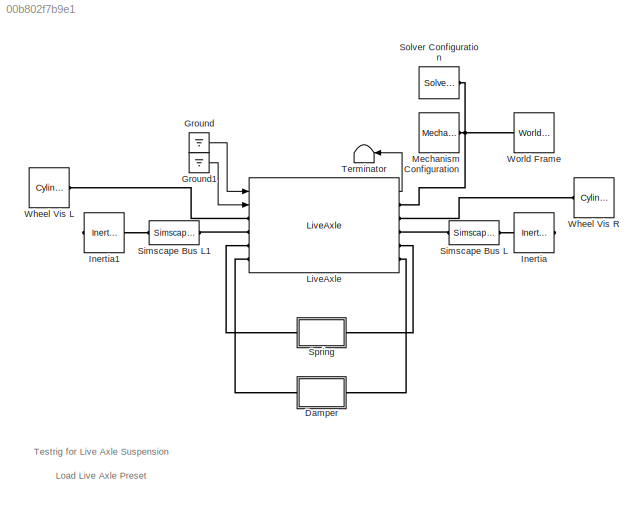
MODEL slx_00b802f7b9e1
KIND model
CONFIG AbsTol = auto
CONFIG EnableMultiTasking = on
CONFIG FixedStep = auto
CONFIG MaxStep = auto
CONFIG MinStep = auto
CONFIG RelTol = 1e-3
CONFIG SampleTimeConstraint = Unconstrained
CONFIG SolverName = ode23t
CONFIG StartTime = 0.0
CONFIG StopTime = 10.0
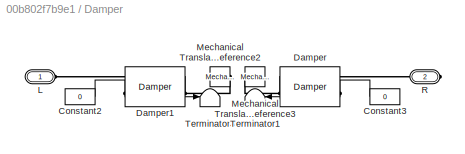
BLOCK [SubSystem] Damper
  Ports = [0, 0, 0, 0, 0, 1, 1]
  RequestExecContextInheritance = off
BLOCK [Constant] Damper/Constant2
  Value = 0
BLOCK [Constant] Damper/Constant3
  Value = 0
BLOCK [Reference] Damper/Damper  REF=Damper_Basics/Damper
  AttributesFormatString = %<ActiveVariant>
  Ports = [1, 1, 0, 0, 0, 1, 1]
  SourceBlock = Damper_Basics/Damper
  SourceType = Variants for Damper
BLOCK [Reference] Damper/Damper1  REF=Damper_Basics/Damper
  AttributesFormatString = %<ActiveVariant>
  Ports = [1, 1, 0, 0, 0, 1, 1]
  SourceBlock = Damper_Basics/Damper
  SourceType = Variants for Damper
BLOCK [PMIOPort] Damper/L
  Side = Left
BLOCK [Reference] Damper/Mechanical Translational Reference2  REF=fl_lib/Mechanical/Translational
Elements/Mechanical
Translational
Reference
  NameLocation = top
  Ports = [0, 0, 0, 0, 0, 1]
  SourceBlock = fl_lib/Mechanical/Translational\nElements/Mechanical\nTranslational\nReference
  SourceProductBaseCode = PW,SS,VE
  SourceType = Mechanical\nTranslational\nReference
BLOCK [Reference] Damper/Mechanical Translational Reference3  REF=fl_lib/Mechanical/Translational
Elements/Mechanical
Translational
Reference
  NameLocation = top
  Ports = [0, 0, 0, 0, 0, 1]
  SourceBlock = fl_lib/Mechanical/Translational\nElements/Mechanical\nTranslational\nReference
  SourceProductBaseCode = PW,SS,VE
  SourceType = Mechanical\nTranslational\nReference
BLOCK [PMIOPort] Damper/R
  Port = 2
  Side = Right
BLOCK [Terminator] Damper/Terminator1
BLOCK [Terminator] Damper/Terminator3
BLOCK [Ground] Ground
BLOCK [Ground] Ground1
BLOCK [Reference] Inertia  REF=fl_lib/Mechanical/Rotational Elements/Inertia
  NameLocation = top
  Ports = [0, 0, 0, 0, 0, 1]
  SourceBlock = fl_lib/Mechanical/Rotational Elements/Inertia
  SourceProductBaseCode = PW,SS,VE
  SourceType = Inertia
BLOCK [Reference] Inertia1  REF=fl_lib/Mechanical/Rotational Elements/Inertia
  NameLocation = top
  Ports = [0, 0, 0, 0, 0, 1]
  SourceBlock = fl_lib/Mechanical/Rotational Elements/Inertia
  SourceProductBaseCode = PW,SS,VE
  SourceType = Inertia
BLOCK [Reference] LiveAxle  REF=Susp_LiveAxle/LiveAxle
  Ports = [2, 1, 0, 0, 0, 4, 5]
  SourceBlock = Susp_LiveAxle/LiveAxle
  SourceType = Live Axle with Quarter-Elliptical Leaf Spring
BLOCK [Reference] Mechanism Configuration  REF=sm_lib/Utilities/Mechanism
Configuration
  Ports = [0, 0, 0, 0, 0, 0, 1]
  SourceBlock = sm_lib/Utilities/Mechanism\nConfiguration
  SourceProductBaseCode = MS
  SourceType = Mechanism\nConfiguration
BLOCK [SimscapeBus] Simscape Bus L
  HierarchyStrings = Axle1D
  Ports = [0, 0, 0, 0, 0, 1, 1]
BLOCK [SimscapeBus] Simscape Bus L1
  HierarchyStrings = Axle1D
  Ports = [0, 0, 0, 0, 0, 1, 1]
BLOCK [Reference] Solver Configuration  REF=nesl_utility/Solver
Configuration
  Ports = [0, 0, 0, 0, 0, 0, 1]
  SourceBlock = nesl_utility/Solver\nConfiguration
  SourceProductBaseCode = SS,PW,VE
  SourceType = Solver\nConfiguration
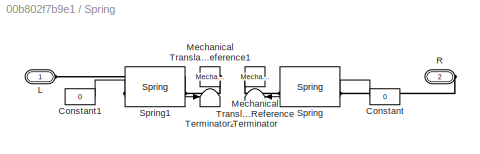
BLOCK [SubSystem] Spring
  Ports = [0, 0, 0, 0, 0, 1, 1]
  RequestExecContextInheritance = off
BLOCK [Constant] Spring/Constant
  Value = 0
BLOCK [Constant] Spring/Constant1
  Value = 0
BLOCK [PMIOPort] Spring/L
  Side = Left
BLOCK [Reference] Spring/Mechanical Translational Reference  REF=fl_lib/Mechanical/Translational
Elements/Mechanical
Translational
Reference
  NameLocation = top
  Ports = [0, 0, 0, 0, 0, 1]
  SourceBlock = fl_lib/Mechanical/Translational\nElements/Mechanical\nTranslational\nReference
  SourceProductBaseCode = PW,SS,VE
  SourceType = Mechanical\nTranslational\nReference
BLOCK [Reference] Spring/Mechanical Translational Reference1  REF=fl_lib/Mechanical/Translational
Elements/Mechanical
Translational
Reference
  NameLocation = top
  Ports = [0, 0, 0, 0, 0, 1]
  SourceBlock = fl_lib/Mechanical/Translational\nElements/Mechanical\nTranslational\nReference
  SourceProductBaseCode = PW,SS,VE
  SourceType = Mechanical\nTranslational\nReference
BLOCK [PMIOPort] Spring/R
  Port = 2
  Side = Right
BLOCK [Reference] Spring/Spring  REF=Spring_Basics/Spring
  AttributesFormatString = %<ActiveVariant>
  Ports = [1, 1, 0, 0, 0, 1, 1]
  SourceBlock = Spring_Basics/Spring
  SourceType = Variants for Spring
BLOCK [Reference] Spring/Spring1  REF=Spring_Basics/Spring
  AttributesFormatString = %<ActiveVariant>
  Ports = [1, 1, 0, 0, 0, 1, 1]
  SourceBlock = Spring_Basics/Spring
  SourceType = Variants for Spring
BLOCK [Terminator] Spring/Terminator
BLOCK [Terminator] Spring/Terminator2
BLOCK [Terminator] Terminator
BLOCK [Reference] Wheel Vis L  REF=sm_lib/Body Elements/Cylindrical Solid
  Ports = [0, 0, 0, 0, 0, 0, 1]
  SourceBlock = sm_lib/Body Elements/Cylindrical Solid
  SourceProductBaseCode = MS
  SourceType = Cylindrical Solid
BLOCK [Reference] Wheel Vis R  REF=sm_lib/Body Elements/Cylindrical Solid
  Ports = [0, 0, 0, 0, 0, 0, 1]
  SourceBlock = sm_lib/Body Elements/Cylindrical Solid
  SourceProductBaseCode = MS
  SourceType = Cylindrical Solid
BLOCK [Reference] World Frame  REF=sm_lib/Frames and
Transforms/World Frame
  Ports = [0, 0, 0, 0, 0, 0, 1]
  SourceBlock = sm_lib/Frames and\nTransforms/World Frame
  SourceProductBaseCode = MS
  SourceType = World Frame
ANNOTATION (root): Load Live Axle Preset
ANNOTATION (root): Testrig for Live Axle Suspension
LINE Damper/Constant2:1 -> Damper/Damper1:1
LINE Damper/Constant3:1 -> Damper/Damper:1
LINE Damper/Damper1:1 -> Damper/Terminator3:1
LINE Damper/Damper:1 -> Damper/Terminator1:1
LINE Ground1:1 -> LiveAxle:2
LINE Ground:1 -> LiveAxle:1
LINE LiveAxle:1 -> Terminator:1
LINE Spring/Constant1:1 -> Spring/Spring1:1
LINE Spring/Constant:1 -> Spring/Spring:1
LINE Spring/Spring1:1 -> Spring/Terminator2:1
LINE Spring/Spring:1 -> Spring/Terminator:1
PLINE Damper/Damper1:LConn1 -- Damper/L:RConn1
PLINE Damper/Damper1:RConn1 -- Damper/Mechanical Translational Reference2:LConn1
PLINE Damper/Damper:LConn1 -- Damper/R:RConn1
PLINE Damper/Damper:RConn1 -- Damper/Mechanical Translational Reference3:LConn1
PLINE Damper:LConn1 -- LiveAxle:LConn4
PLINE Damper:RConn1 -- LiveAxle:RConn5
PLINE Inertia1:LConn1 -- Simscape Bus L1:LConn1
PLINE Inertia:LConn1 -- Simscape Bus L:LConn1
PLINE LiveAxle:LConn1 -- Wheel Vis L:RConn1
PLINE LiveAxle:LConn2 -- Simscape Bus L1:RConn1
PLINE LiveAxle:LConn3 -- Spring:LConn1
PNET net1: LiveAxle:RConn1 -- Mechanism Configuration:RConn1 -- Solver Configuration:RConn1 -- World Frame:RConn1
PLINE LiveAxle:RConn2 -- Wheel Vis R:RConn1
PLINE LiveAxle:RConn3 -- Simscape Bus L:RConn1
PLINE LiveAxle:RConn4 -- Spring:RConn1
PLINE Spring/L:RConn1 -- Spring/Spring1:LConn1
PLINE Spring/Mechanical Translational Reference1:LConn1 -- Spring/Spring1:RConn1
PLINE Spring/Mechanical Translational Reference:LConn1 -- Spring/Spring:RConn1
PLINE Spring/R:RConn1 -- Spring/Spring:LConn1
note: PNET lines group multi-terminal physical nets as a canonical sorted terminal list (undirected conserving connections); 2-terminal nets keep the pairwise PLINE form
